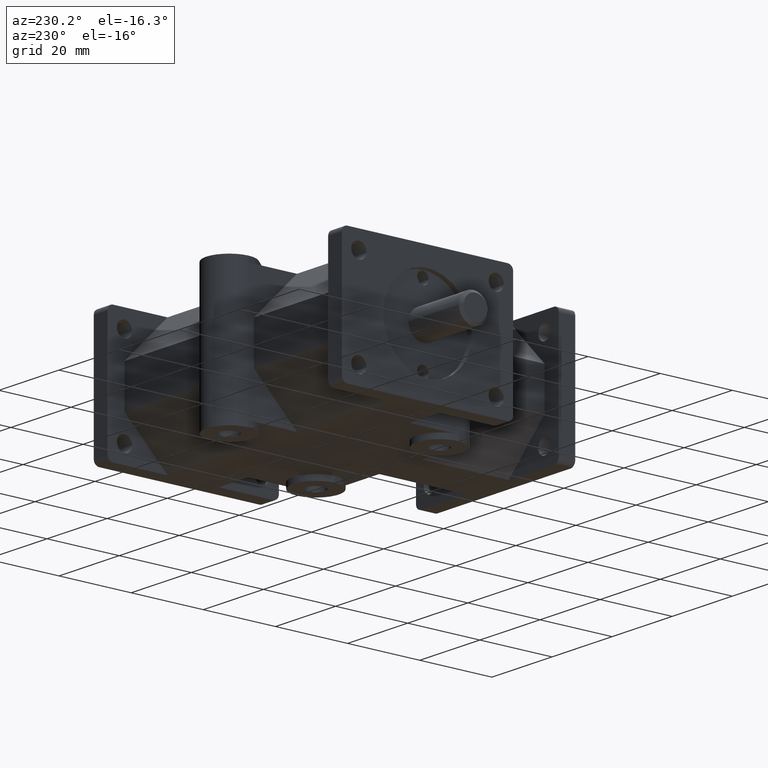
[diagram: clean part render]
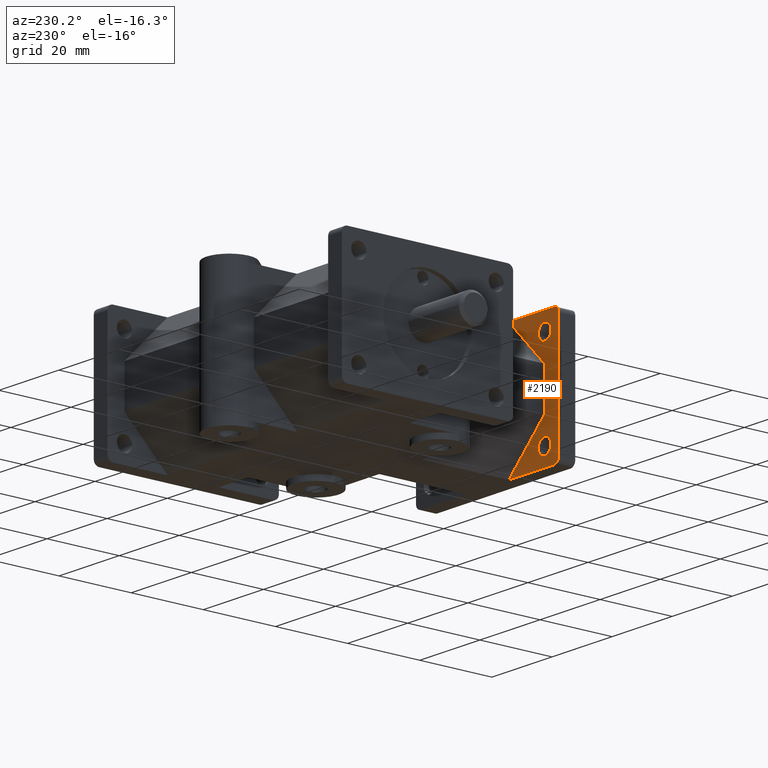
[diagram: same view with one face highlighted and labeled with its STEP entity id]
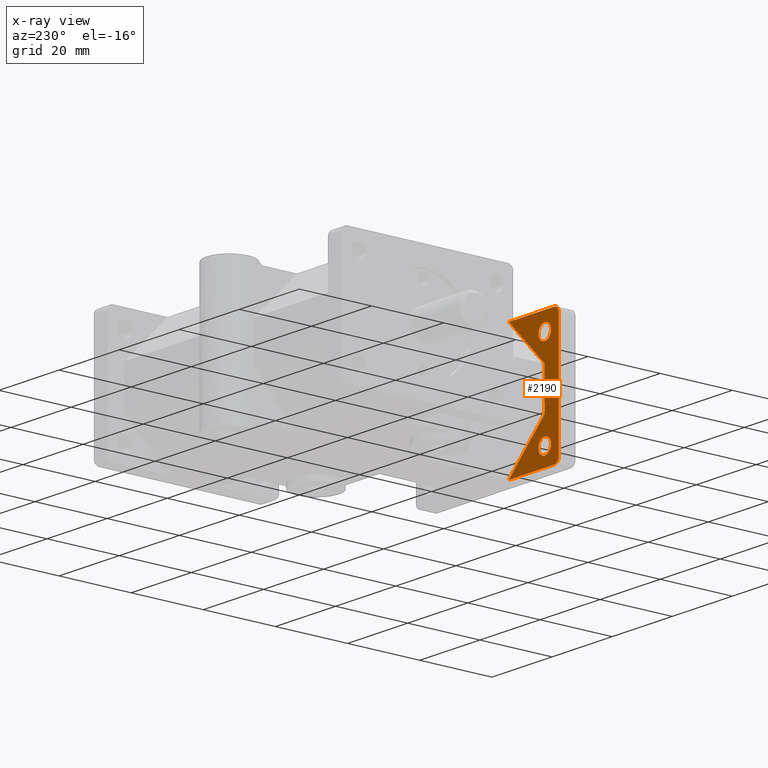
[diagram: x-ray of the same camera — body ghosted, the highlighted face saturated]
A machine part, auxiliary view. The second image highlights one B-rep face of the part: STEP entity #2190.
The next image is the same camera in x-ray: the body ghosted, the highlighted face saturated — about 0% of this face is hidden behind the body in this view.
In plain terms, the highlighted planar face has unit normal (0, 1, 0).
Its self-contained STEP definition (entity closure, byte-faithful):
#59=FACE_BOUND('',#414,.T.);
#60=FACE_BOUND('',#415,.T.);
#133=PLANE('',#2432);
#252=FACE_OUTER_BOUND('',#413,.T.);
#413=EDGE_LOOP('',(#2016,#2017,#2018,#2019,#2020,#2021,#2022,#2023));
#414=EDGE_LOOP('',(#2024));
#415=EDGE_LOOP('',(#2025));
#455=CIRCLE('',#2275,1.524);
#457=CIRCLE('',#2278,1.524);
#520=CIRCLE('',#2424,2.1082);
#521=CIRCLE('',#2426,2.1082);
#600=LINE('',#3398,#795);
#606=LINE('',#3414,#801);
#644=LINE('',#3506,#839);
#648=LINE('',#3514,#843);
#651=LINE('',#3518,#846);
#717=LINE('',#3709,#912);
#795=VECTOR('',#2742,1.);
#801=VECTOR('',#2756,1.);
#839=VECTOR('',#2836,1.);
#843=VECTOR('',#2842,1.);
#846=VECTOR('',#2847,1.);
#912=VECTOR('',#3083,1.);
#961=VERTEX_POINT('',#3229);
#962=VERTEX_POINT('',#3231);
#965=VERTEX_POINT('',#3238);
#966=VERTEX_POINT('',#3240);
#1031=VERTEX_POINT('',#3396);
#1037=VERTEX_POINT('',#3413);
#1070=VERTEX_POINT('',#3505);
#1072=VERTEX_POINT('',#3511);
#1111=VERTEX_POINT('',#3694);
#1112=VERTEX_POINT('',#3698);
#1178=EDGE_CURVE('',#961,#962,#455,.T.);
#1182=EDGE_CURVE('',#965,#966,#457,.T.);
#1262=EDGE_CURVE('',#965,#1031,#600,.T.);
#1270=EDGE_CURVE('',#1037,#962,#606,.T.);
#1318=EDGE_CURVE('',#1070,#1031,#644,.F.);
#1322=EDGE_CURVE('',#1072,#1070,#648,.T.);
#1325=EDGE_CURVE('',#1037,#1072,#651,.F.);
#1411=EDGE_CURVE('',#1111,#1111,#520,.T.);
#1413=EDGE_CURVE('',#1112,#1112,#521,.T.);
#1417=EDGE_CURVE('',#961,#966,#717,.T.);
#2016=ORIENTED_EDGE('',*,*,#1178,.F.);
#2017=ORIENTED_EDGE('',*,*,#1417,.T.);
#2018=ORIENTED_EDGE('',*,*,#1182,.F.);
#2019=ORIENTED_EDGE('',*,*,#1262,.T.);
#2020=ORIENTED_EDGE('',*,*,#1318,.F.);
#2021=ORIENTED_EDGE('',*,*,#1322,.F.);
#2022=ORIENTED_EDGE('',*,*,#1325,.F.);
#2023=ORIENTED_EDGE('',*,*,#1270,.T.);
#2024=ORIENTED_EDGE('',*,*,#1411,.T.);
#2025=ORIENTED_EDGE('',*,*,#1413,.T.);
#2190=ADVANCED_FACE('',(#252,#59,#60),#133,.T.);
#2275=AXIS2_PLACEMENT_3D('',#3232,#2600,#2601);
#2278=AXIS2_PLACEMENT_3D('',#3241,#2608,#2609);
#2424=AXIS2_PLACEMENT_3D('',#3696,#3064,#3065);
#2426=AXIS2_PLACEMENT_3D('',#3700,#3069,#3070);
#2432=AXIS2_PLACEMENT_3D('',#3710,#3084,#3085);
#2600=DIRECTION('center_axis',(0.,-1.,0.));
#2601=DIRECTION('ref_axis',(-0.707106781186548,0.,-0.707106781186548));
#2608=DIRECTION('center_axis',(0.,-1.,0.));
#2609=DIRECTION('ref_axis',(-0.707106781186548,0.,0.707106781186548));
#2742=DIRECTION('',(1.,0.,0.));
#2756=DIRECTION('',(-1.,0.,0.));
#2836=DIRECTION('',(-0.707106781186547,0.,-0.707106781186547));
#2842=DIRECTION('',(0.,0.,1.));
#2847=DIRECTION('',(0.707106781186547,0.,-0.707106781186547));
#3064=DIRECTION('center_axis',(0.,-1.,0.));
#3065=DIRECTION('ref_axis',(1.,0.,0.));
#3069=DIRECTION('center_axis',(0.,-1.,0.));
#3070=DIRECTION('ref_axis',(1.,0.,0.));
#3083=DIRECTION('',(0.,0.,1.));
#3084=DIRECTION('center_axis',(0.,1.,0.));
#3085=DIRECTION('ref_axis',(0.,0.,-1.));
#3229=CARTESIAN_POINT('',(-23.749,4.572,-16.002));
#3231=CARTESIAN_POINT('',(-22.225,4.572,-17.526));
#3232=CARTESIAN_POINT('Origin',(-22.225,4.572,-16.002));
#3238=CARTESIAN_POINT('',(-22.225,4.572,17.526));
#3240=CARTESIAN_POINT('',(-23.749,4.572,16.002));
#3241=CARTESIAN_POINT('Origin',(-22.225,4.572,16.002));
#3396=CARTESIAN_POINT('',(-7.112,4.572,17.526));
#3398=CARTESIAN_POINT('',(-11.8745,4.572,17.526));
#3413=CARTESIAN_POINT('',(-7.112,4.572,-17.526));
#3414=CARTESIAN_POINT('',(-19.05,4.572,-17.526));
#3505=CARTESIAN_POINT('',(-19.05,4.572,5.588));
#3506=CARTESIAN_POINT('',(-18.63725,4.572,6.00075));
#3511=CARTESIAN_POINT('',(-19.05,4.572,-5.588));
#3514=CARTESIAN_POINT('',(-19.05,4.572,0.));
#3518=CARTESIAN_POINT('',(-18.63725,4.572,-6.00075));
#3694=CARTESIAN_POINT('',(-21.1582,4.572,12.7));
#3696=CARTESIAN_POINT('Origin',(-19.05,4.572,12.7));
#3698=CARTESIAN_POINT('',(-21.1582,4.572,-12.7));
#3700=CARTESIAN_POINT('Origin',(-19.05,4.572,-12.7));
#3709=CARTESIAN_POINT('',(-23.749,4.572,0.));
#3710=CARTESIAN_POINT('Origin',(-23.749,4.572,0.));